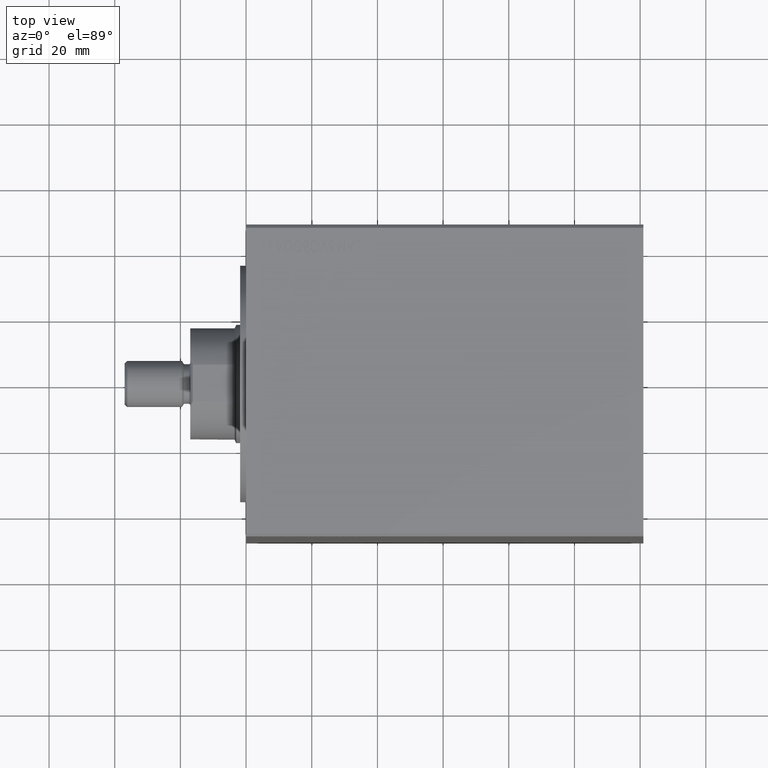
[diagram: clean part render]
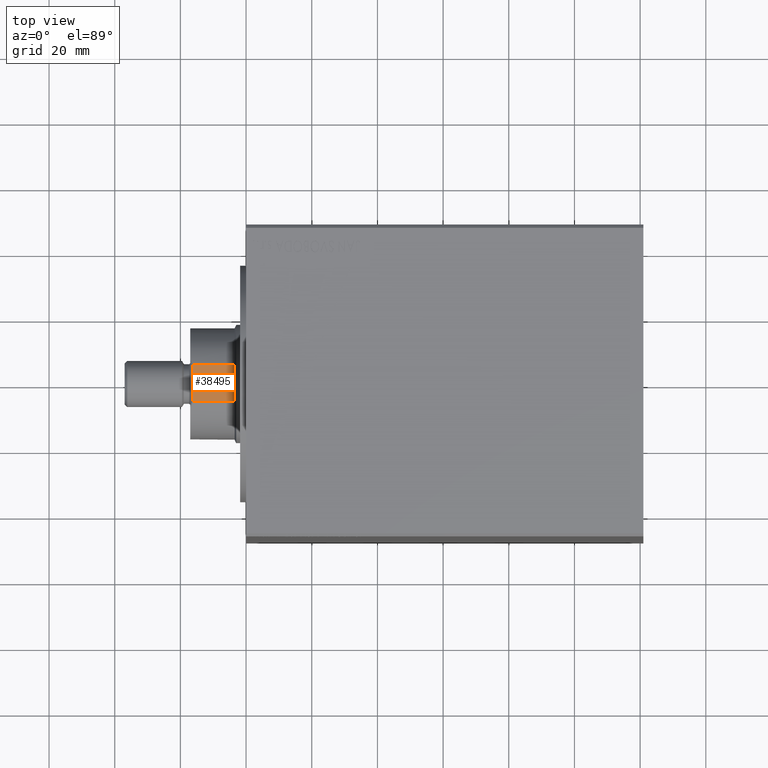
[diagram: same view with one face highlighted and labeled with its STEP entity id]
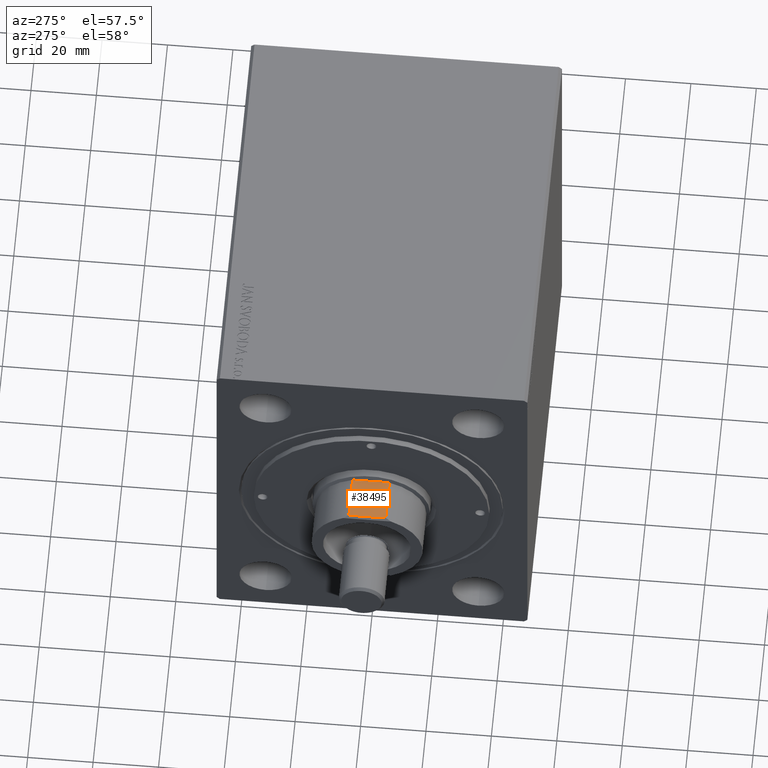
[diagram: same view with one face highlighted and labeled with its STEP entity id]
A machine part, top view. The second image highlights one B-rep face of the part: STEP entity #38495.
A second angle (auxiliary view) of the same face is appended — the face is thin or edge-on in the first view.
In plain terms, the highlighted planar face has unit normal (0, 0, -1).
Its self-contained STEP definition (entity closure, byte-faithful):
#465 = ORIENTED_EDGE ( 'NONE', *, *, #38001, .F. ) ;
#992 = LINE ( 'NONE', #28168, #35291 ) ;
#2347 = VERTEX_POINT ( 'NONE', #13310 ) ;
#2359 = DIRECTION ( 'NONE',  ( 0.000000000000000000, 1.000000000000000000, 1.376177394578395099E-16 ) ) ;
#3053 = DIRECTION ( 'NONE',  ( 1.000000000000000000, -0.000000000000000000, 0.000000000000000000 ) ) ;
#7527 = DIRECTION ( 'NONE',  ( 0.000000000000000000, 1.376177394578395099E-16, -1.000000000000000000 ) ) ;
#8768 = CARTESIAN_POINT ( 'NONE',  ( -16.00000000000000000, -57.82732917920383642, -55.24166638606411794 ) ) ;
#9558 = LINE ( 'NONE', #36018, #14071 ) ;
#10453 = VERTEX_POINT ( 'NONE', #42343 ) ;
#12111 = EDGE_CURVE ( 'NONE', #10453, #14114, #9558, .T. ) ;
#13278 = CARTESIAN_POINT ( 'NONE',  ( -16.00000000000000000, 5.625086665999012858, 68.49999999999998579 ) ) ;
#13310 = CARTESIAN_POINT ( 'NONE',  ( -16.00000000000000000, -5.625086665999031510, 68.49999999999998579 ) ) ;
#13797 = EDGE_CURVE ( 'NONE', #22530, #2347, #37667, .T. ) ;
#14071 = VECTOR ( 'NONE', #2359, 1000.000000000000000 ) ;
#14114 = VERTEX_POINT ( 'NONE', #42533 ) ;
#17339 = ORIENTED_EDGE ( 'NONE', *, *, #13797, .T. ) ;
#18271 = ORIENTED_EDGE ( 'NONE', *, *, #12111, .T. ) ;
#22530 = VERTEX_POINT ( 'NONE', #13278 ) ;
#23415 = VECTOR ( 'NONE', #24462, 1000.000000000000000 ) ;
#24462 = DIRECTION ( 'NONE',  ( -0.000000000000000000, -1.000000000000000000, 0.000000000000000000 ) ) ;
#26201 = EDGE_LOOP ( 'NONE', ( #42290, #18271, #465, #17339 ) ) ;
#28168 = CARTESIAN_POINT ( 'NONE',  ( -16.00000000000000000, -5.625086665999033286, 81.99999999999998579 ) ) ;
#29016 = CARTESIAN_POINT ( 'NONE',  ( -16.00000000000000000, 5.625086665999011082, 81.99999999999998579 ) ) ;
#30660 = DIRECTION ( 'NONE',  ( 0.000000000000000000, 0.000000000000000000, -1.000000000000000000 ) ) ;
#31809 = VECTOR ( 'NONE', #35941, 1000.000000000000000 ) ;
#31842 = AXIS2_PLACEMENT_3D ( 'NONE', #8768, #3053, #30660 ) ;
#33804 = PLANE ( 'NONE',  #31842 ) ;
#34185 = LINE ( 'NONE', #29016, #31809 ) ;
#35284 = EDGE_CURVE ( 'NONE', #10453, #2347, #992, .T. ) ;
#35291 = VECTOR ( 'NONE', #7527, 1000.000000000000000 ) ;
#35941 = DIRECTION ( 'NONE',  ( -0.000000000000000000, -1.376177394578395099E-16, 1.000000000000000000 ) ) ;
#36018 = CARTESIAN_POINT ( 'NONE',  ( -16.00000000000000000, -57.82732917920385773, 81.29000000000000625 ) ) ;
#37667 = LINE ( 'NONE', #41484, #23415 ) ;
#38001 = EDGE_CURVE ( 'NONE', #22530, #14114, #34185, .T. ) ;
#38495 = ADVANCED_FACE ( 'NONE', ( #44327 ), #33804, .F. ) ;
#41484 = CARTESIAN_POINT ( 'NONE',  ( -16.00000000000000000, -57.82732917920383642, 68.49999999999998579 ) ) ;
#42290 = ORIENTED_EDGE ( 'NONE', *, *, #35284, .F. ) ;
#42343 = CARTESIAN_POINT ( 'NONE',  ( -16.00000000000000000, -5.625086665999033286, 81.28999999999999204 ) ) ;
#42533 = CARTESIAN_POINT ( 'NONE',  ( -16.00000000000000000, 5.625086665999011082, 81.28999999999999204 ) ) ;
#44327 = FACE_OUTER_BOUND ( 'NONE', #26201, .T. ) ;